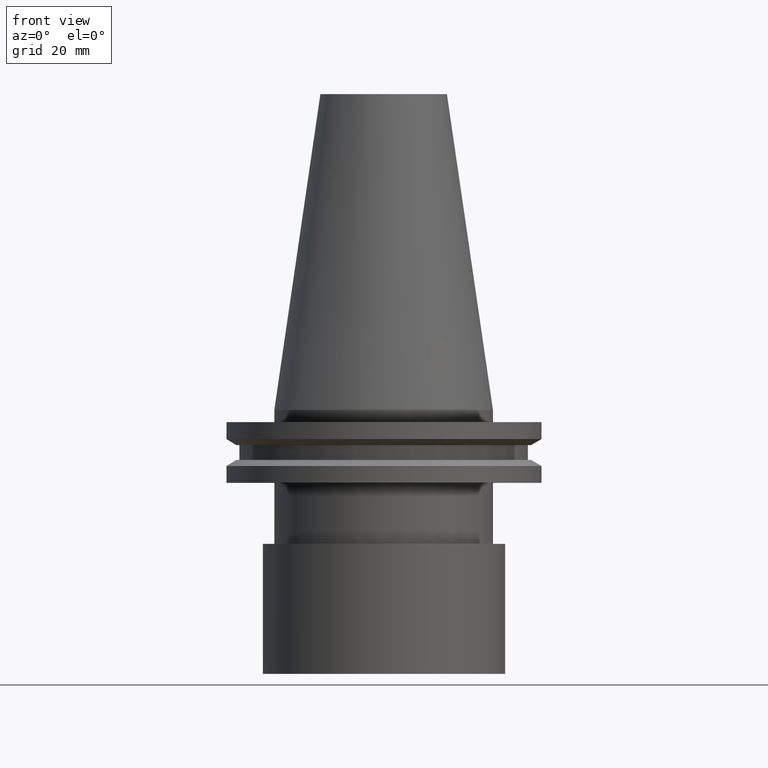
[diagram: clean part render]
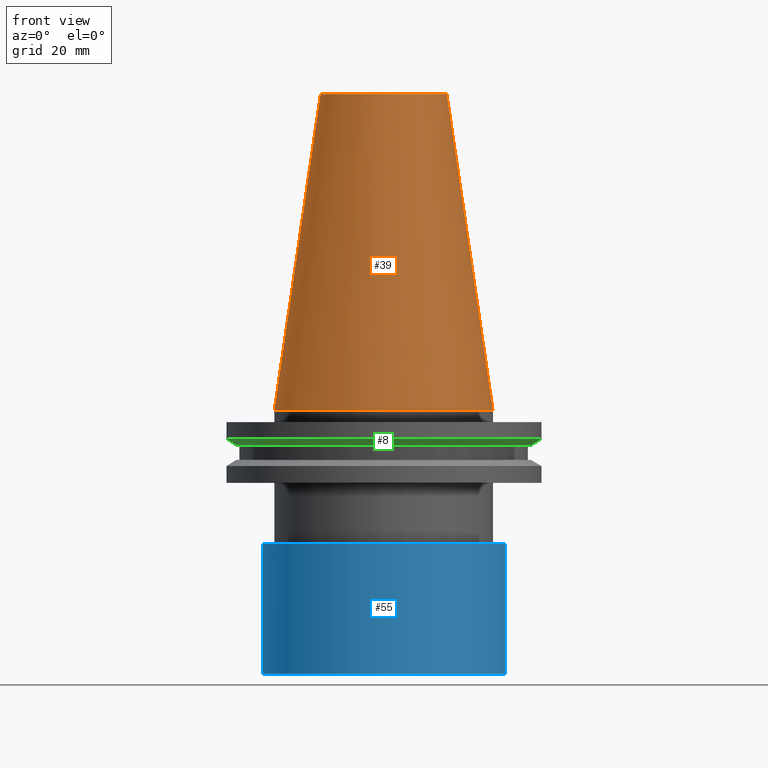
[diagram: same view with three faces highlighted in distinct colors, each labeled with its STEP entity id]
A machine part, front view with three faces highlighted in distinct colors.
Their STEP definitions:

[orange] entity #39 — the highlighted conical surface has half-angle 8.297 deg.
#34 = CIRCLE ( 'NONE', #63, 16.53634466332832886 ) ;
#39 = ADVANCED_FACE ( 'NONE', ( #299, #238 ), #361, .T. ) ;
#54 = VERTEX_POINT ( 'NONE', #232 ) ;
#63 = AXIS2_PLACEMENT_3D ( 'NONE', #108, #255, #320 ) ;
#99 = DIRECTION ( 'NONE',  ( -0.000000000000000000, -0.000000000000000000, 1.000000000000000000 ) ) ;
#108 = CARTESIAN_POINT ( 'NONE',  ( 0.000000000000000000, 0.000000000000000000, 82.55000000000001137 ) ) ;
#120 = DIRECTION ( 'NONE',  ( 0.000000000000000000, 0.000000000000000000, -1.000000000000000000 ) ) ;
#141 = EDGE_LOOP ( 'NONE', ( #374 ) ) ;
#144 = ORIENTED_EDGE ( 'NONE', *, *, #191, .T. ) ;
#166 = AXIS2_PLACEMENT_3D ( 'NONE', #371, #99, #217 ) ;
#177 = AXIS2_PLACEMENT_3D ( 'NONE', #201, #120, #209 ) ;
#191 = EDGE_CURVE ( 'NONE', #54, #54, #342, .T. ) ;
#201 = CARTESIAN_POINT ( 'NONE',  ( 0.000000000000000000, 0.000000000000000000, 0.000000000000000000 ) ) ;
#209 = DIRECTION ( 'NONE',  ( -1.000000000000000000, 0.000000000000000000, 0.000000000000000000 ) ) ;
#217 = DIRECTION ( 'NONE',  ( 1.000000000000000000, 0.000000000000000000, 0.000000000000000000 ) ) ;
#230 = EDGE_LOOP ( 'NONE', ( #144 ) ) ;
#232 = CARTESIAN_POINT ( 'NONE',  ( 28.57499999999999218, 0.000000000000000000, 0.000000000000000000 ) ) ;
#238 = FACE_OUTER_BOUND ( 'NONE', #230, .T. ) ;
#255 = DIRECTION ( 'NONE',  ( -0.000000000000000000, -0.000000000000000000, 1.000000000000000000 ) ) ;
#264 = VERTEX_POINT ( 'NONE', #274 ) ;
#274 = CARTESIAN_POINT ( 'NONE',  ( 16.53634466332832886, 0.000000000000000000, 82.55000000000001137 ) ) ;
#299 = FACE_BOUND ( 'NONE', #141, .T. ) ;
#320 = DIRECTION ( 'NONE',  ( 1.000000000000000000, 0.000000000000000000, 0.000000000000000000 ) ) ;
#342 = CIRCLE ( 'NONE', #166, 28.57499999999999218 ) ;
#361 = CONICAL_SURFACE ( 'NONE', #177, 28.57499999999999218, 0.1448138465474119174 ) ;
#371 = CARTESIAN_POINT ( 'NONE',  ( 0.000000000000000000, 0.000000000000000000, 0.000000000000000000 ) ) ;
#374 = ORIENTED_EDGE ( 'NONE', *, *, #375, .F. ) ;
#375 = EDGE_CURVE ( 'NONE', #264, #264, #34, .T. ) ;

[blue] entity #55 — the highlighted cylindrical surface (bore or boss wall) has radius 31.75 mm, axis along (-0, -0, 1).
#12 = EDGE_LOOP ( 'NONE', ( #283 ) ) ;
#24 = ORIENTED_EDGE ( 'NONE', *, *, #159, .F. ) ;
#26 = DIRECTION ( 'NONE',  ( -0.000000000000000000, -0.000000000000000000, 1.000000000000000000 ) ) ;
#37 = DIRECTION ( 'NONE',  ( -0.000000000000000000, -0.000000000000000000, 1.000000000000000000 ) ) ;
#53 = CARTESIAN_POINT ( 'NONE',  ( 0.000000000000000000, 0.000000000000000000, -68.98999999999999488 ) ) ;
#55 = ADVANCED_FACE ( 'NONE', ( #155, #89 ), #241, .T. ) ;
#85 = CARTESIAN_POINT ( 'NONE',  ( 0.000000000000000000, 0.000000000000000000, 0.000000000000000000 ) ) ;
#89 = FACE_OUTER_BOUND ( 'NONE', #12, .T. ) ;
#121 = EDGE_CURVE ( 'NONE', #197, #197, #288, .T. ) ;
#135 = CIRCLE ( 'NONE', #352, 31.75000000000000000 ) ;
#155 = FACE_OUTER_BOUND ( 'NONE', #254, .T. ) ;
#159 = EDGE_CURVE ( 'NONE', #168, #168, #135, .T. ) ;
#168 = VERTEX_POINT ( 'NONE', #291 ) ;
#197 = VERTEX_POINT ( 'NONE', #228 ) ;
#228 = CARTESIAN_POINT ( 'NONE',  ( 31.75000000000000000, 0.000000000000000000, -68.98999999999999488 ) ) ;
#233 = DIRECTION ( 'NONE',  ( -0.000000000000000000, -0.000000000000000000, 1.000000000000000000 ) ) ;
#241 = CYLINDRICAL_SURFACE ( 'NONE', #295, 31.75000000000000000 ) ;
#244 = CARTESIAN_POINT ( 'NONE',  ( 0.000000000000000000, 0.000000000000000000, -34.99999999999999289 ) ) ;
#248 = DIRECTION ( 'NONE',  ( 1.000000000000000000, 0.000000000000000000, 0.000000000000000000 ) ) ;
#250 = AXIS2_PLACEMENT_3D ( 'NONE', #53, #26, #263 ) ;
#254 = EDGE_LOOP ( 'NONE', ( #24 ) ) ;
#263 = DIRECTION ( 'NONE',  ( 1.000000000000000000, 0.000000000000000000, 0.000000000000000000 ) ) ;
#283 = ORIENTED_EDGE ( 'NONE', *, *, #121, .T. ) ;
#288 = CIRCLE ( 'NONE', #250, 31.75000000000000000 ) ;
#291 = CARTESIAN_POINT ( 'NONE',  ( 31.75000000000000000, 0.000000000000000000, -34.99999999999999289 ) ) ;
#295 = AXIS2_PLACEMENT_3D ( 'NONE', #85, #233, #303 ) ;
#303 = DIRECTION ( 'NONE',  ( 1.000000000000000000, 0.000000000000000000, 0.000000000000000000 ) ) ;
#352 = AXIS2_PLACEMENT_3D ( 'NONE', #244, #37, #248 ) ;

[green] entity #8 — the highlighted conical surface has half-angle 60 deg.
#8 = ADVANCED_FACE ( 'NONE', ( #379, #222 ), #256, .T. ) ;
#15 = CARTESIAN_POINT ( 'NONE',  ( 0.000000000000000000, 0.000000000000000000, -7.605276606597321631 ) ) ;
#22 = DIRECTION ( 'NONE',  ( -0.000000000000000000, -0.000000000000000000, 1.000000000000000000 ) ) ;
#41 = ORIENTED_EDGE ( 'NONE', *, *, #272, .T. ) ;
#46 = ORIENTED_EDGE ( 'NONE', *, *, #236, .F. ) ;
#78 = CARTESIAN_POINT ( 'NONE',  ( 0.000000000000000000, 0.000000000000000000, -9.205000000000005400 ) ) ;
#90 = AXIS2_PLACEMENT_3D ( 'NONE', #15, #22, #350 ) ;
#106 = EDGE_LOOP ( 'NONE', ( #41 ) ) ;
#109 = DIRECTION ( 'NONE',  ( 1.000000000000000000, 0.000000000000000000, 0.000000000000000000 ) ) ;
#128 = AXIS2_PLACEMENT_3D ( 'NONE', #78, #261, #143 ) ;
#143 = DIRECTION ( 'NONE',  ( 1.000000000000000000, 0.000000000000000000, 0.000000000000000000 ) ) ;
#145 = CARTESIAN_POINT ( 'NONE',  ( 38.50419780457011854, 0.000000000000000000, -9.205000000000005400 ) ) ;
#170 = CARTESIAN_POINT ( 'NONE',  ( 41.27500000000000568, 0.000000000000000000, -7.605276606597321631 ) ) ;
#183 = CIRCLE ( 'NONE', #128, 38.50419780457011854 ) ;
#222 = FACE_BOUND ( 'NONE', #106, .T. ) ;
#236 = EDGE_CURVE ( 'NONE', #326, #326, #282, .T. ) ;
#256 = CONICAL_SURFACE ( 'NONE', #293, 38.50419780457011854, 1.047197551196589860 ) ;
#261 = DIRECTION ( 'NONE',  ( -0.000000000000000000, -0.000000000000000000, 1.000000000000000000 ) ) ;
#272 = EDGE_CURVE ( 'NONE', #388, #388, #183, .T. ) ;
#282 = CIRCLE ( 'NONE', #90, 41.27500000000000568 ) ;
#285 = DIRECTION ( 'NONE',  ( -0.000000000000000000, -0.000000000000000000, 1.000000000000000000 ) ) ;
#293 = AXIS2_PLACEMENT_3D ( 'NONE', #316, #285, #109 ) ;
#316 = CARTESIAN_POINT ( 'NONE',  ( 0.000000000000000000, 0.000000000000000000, -9.205000000000005400 ) ) ;
#326 = VERTEX_POINT ( 'NONE', #170 ) ;
#346 = EDGE_LOOP ( 'NONE', ( #46 ) ) ;
#350 = DIRECTION ( 'NONE',  ( 1.000000000000000000, 0.000000000000000000, 0.000000000000000000 ) ) ;
#379 = FACE_OUTER_BOUND ( 'NONE', #346, .T. ) ;
#388 = VERTEX_POINT ( 'NONE', #145 ) ;